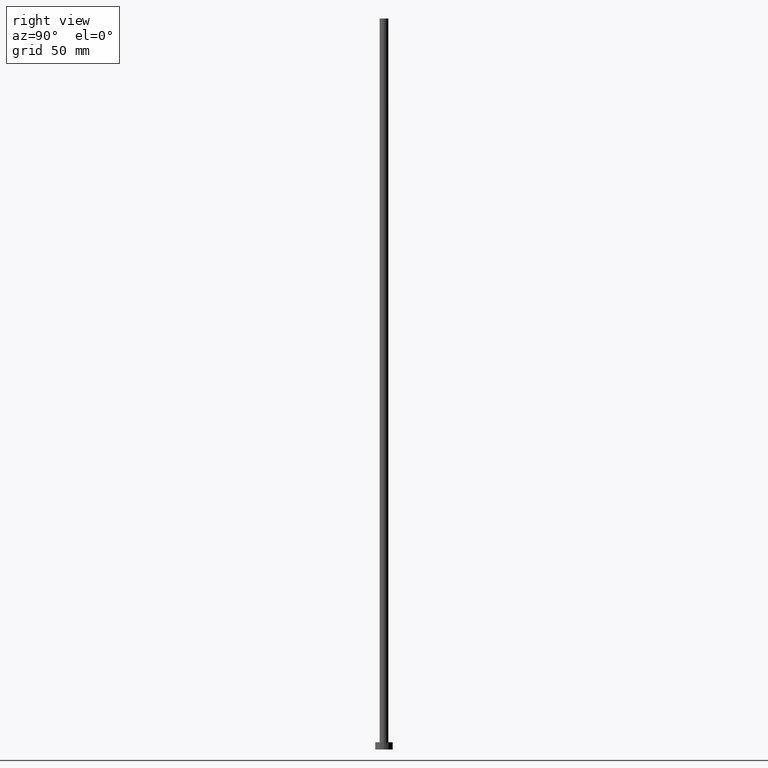
[diagram: clean part render]
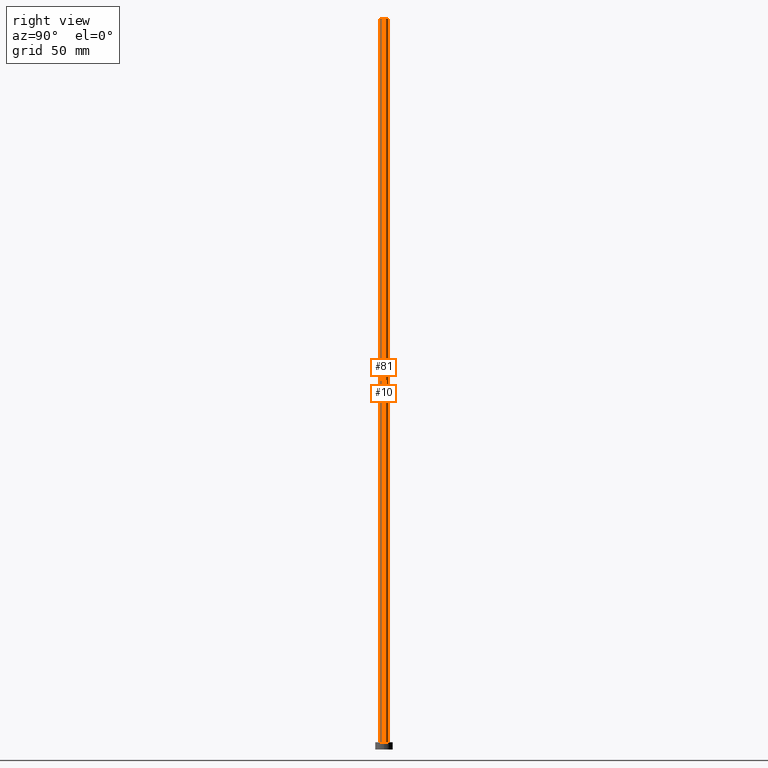
[diagram: same view with one multi-face feature highlighted, each face labeled with its STEP entity id]
A machine part, right view. The highlighted faces form ONE feature: a constant-radius fillet chain: 2 tangent blend faces with common blend radius 3 mm. The faces share edges in the B-rep.
Their STEP definitions:
[1] entity #10 (Cylinder):
#10 = ADVANCED_FACE ( 'NONE', ( #229 ), #130, .T. ) ;
#34 = ORIENTED_EDGE ( 'NONE', *, *, #49, .T. ) ;
#39 = AXIS2_PLACEMENT_3D ( 'NONE', #243, #65, #131 ) ;
#41 = CARTESIAN_POINT ( 'NONE',  ( -3.000000000000000444, 0.000000000000000000, 5.000000000000000000 ) ) ;
#44 = DIRECTION ( 'NONE',  ( -0.000000000000000000, -0.000000000000000000, -1.000000000000000000 ) ) ;
#45 = CARTESIAN_POINT ( 'NONE',  ( 3.000000000000000444, 3.673940397442060361E-16, 5.000000000000000000 ) ) ;
#49 = EDGE_CURVE ( 'NONE', #244, #144, #173, .T. ) ;
#65 = DIRECTION ( 'NONE',  ( -0.000000000000000000, -0.000000000000000000, -1.000000000000000000 ) ) ;
#68 = VECTOR ( 'NONE', #44, 1000.000000000000000 ) ;
#74 = DIRECTION ( 'NONE',  ( 0.000000000000000000, 0.000000000000000000, 1.000000000000000000 ) ) ;
#75 = CARTESIAN_POINT ( 'NONE',  ( 0.000000000000000000, 0.000000000000000000, 500.0000000000000000 ) ) ;
#84 = EDGE_LOOP ( 'NONE', ( #193, #34, #186, #245 ) ) ;
#85 = CARTESIAN_POINT ( 'NONE',  ( 3.000000000000000444, 3.673940397442060361E-16, 500.0000000000000000 ) ) ;
#96 = CIRCLE ( 'NONE', #216, 3.000000000000000444 ) ;
#107 = EDGE_CURVE ( 'NONE', #244, #238, #210, .T. ) ;
#108 = DIRECTION ( 'NONE',  ( -0.000000000000000000, -0.000000000000000000, -1.000000000000000000 ) ) ;
#115 = DIRECTION ( 'NONE',  ( 1.000000000000000000, 0.000000000000000000, 0.000000000000000000 ) ) ;
#116 = VECTOR ( 'NONE', #108, 1000.000000000000000 ) ;
#119 = EDGE_CURVE ( 'NONE', #238, #182, #241, .T. ) ;
#128 = CARTESIAN_POINT ( 'NONE',  ( -3.000000000000000444, 0.000000000000000000, 500.0000000000000000 ) ) ;
#130 = CYLINDRICAL_SURFACE ( 'NONE', #39, 3.000000000000000444 ) ;
#131 = DIRECTION ( 'NONE',  ( -1.000000000000000000, 0.000000000000000000, 0.000000000000000000 ) ) ;
#144 = VERTEX_POINT ( 'NONE', #45 ) ;
#155 = CARTESIAN_POINT ( 'NONE',  ( 0.000000000000000000, 0.000000000000000000, 5.000000000000000000 ) ) ;
#156 = DIRECTION ( 'NONE',  ( 0.000000000000000000, 0.000000000000000000, 1.000000000000000000 ) ) ;
#173 = LINE ( 'NONE', #247, #68 ) ;
#182 = VERTEX_POINT ( 'NONE', #41 ) ;
#186 = ORIENTED_EDGE ( 'NONE', *, *, #230, .T. ) ;
#193 = ORIENTED_EDGE ( 'NONE', *, *, #107, .F. ) ;
#195 = CARTESIAN_POINT ( 'NONE',  ( -3.000000000000000444, 0.000000000000000000, 500.0000000000000000 ) ) ;
#210 = CIRCLE ( 'NONE', #233, 3.000000000000000444 ) ;
#216 = AXIS2_PLACEMENT_3D ( 'NONE', #155, #74, #115 ) ;
#229 = FACE_OUTER_BOUND ( 'NONE', #84, .T. ) ;
#230 = EDGE_CURVE ( 'NONE', #144, #182, #96, .T. ) ;
#233 = AXIS2_PLACEMENT_3D ( 'NONE', #75, #156, #255 ) ;
#238 = VERTEX_POINT ( 'NONE', #128 ) ;
#241 = LINE ( 'NONE', #195, #116 ) ;
#243 = CARTESIAN_POINT ( 'NONE',  ( 0.000000000000000000, 0.000000000000000000, 500.0000000000000000 ) ) ;
#244 = VERTEX_POINT ( 'NONE', #85 ) ;
#245 = ORIENTED_EDGE ( 'NONE', *, *, #119, .F. ) ;
#247 = CARTESIAN_POINT ( 'NONE',  ( 3.000000000000000444, 3.673940397442060361E-16, 500.0000000000000000 ) ) ;
#255 = DIRECTION ( 'NONE',  ( 1.000000000000000000, 0.000000000000000000, 0.000000000000000000 ) ) ;
[2] entity #81 (Cylinder):
#6 = FACE_OUTER_BOUND ( 'NONE', #40, .T. ) ;
#16 = CARTESIAN_POINT ( 'NONE',  ( 0.000000000000000000, 0.000000000000000000, 500.0000000000000000 ) ) ;
#40 = EDGE_LOOP ( 'NONE', ( #140, #202, #93, #184 ) ) ;
#41 = CARTESIAN_POINT ( 'NONE',  ( -3.000000000000000444, 0.000000000000000000, 5.000000000000000000 ) ) ;
#44 = DIRECTION ( 'NONE',  ( -0.000000000000000000, -0.000000000000000000, -1.000000000000000000 ) ) ;
#45 = CARTESIAN_POINT ( 'NONE',  ( 3.000000000000000444, 3.673940397442060361E-16, 5.000000000000000000 ) ) ;
#49 = EDGE_CURVE ( 'NONE', #244, #144, #173, .T. ) ;
#64 = DIRECTION ( 'NONE',  ( 0.000000000000000000, 0.000000000000000000, 1.000000000000000000 ) ) ;
#66 = EDGE_CURVE ( 'NONE', #182, #144, #221, .T. ) ;
#67 = CYLINDRICAL_SURFACE ( 'NONE', #86, 3.000000000000000444 ) ;
#68 = VECTOR ( 'NONE', #44, 1000.000000000000000 ) ;
#70 = DIRECTION ( 'NONE',  ( 1.000000000000000000, 0.000000000000000000, 0.000000000000000000 ) ) ;
#81 = ADVANCED_FACE ( 'NONE', ( #6 ), #67, .T. ) ;
#82 = DIRECTION ( 'NONE',  ( 0.000000000000000000, 0.000000000000000000, 1.000000000000000000 ) ) ;
#85 = CARTESIAN_POINT ( 'NONE',  ( 3.000000000000000444, 3.673940397442060361E-16, 500.0000000000000000 ) ) ;
#86 = AXIS2_PLACEMENT_3D ( 'NONE', #246, #203, #133 ) ;
#93 = ORIENTED_EDGE ( 'NONE', *, *, #119, .T. ) ;
#108 = DIRECTION ( 'NONE',  ( -0.000000000000000000, -0.000000000000000000, -1.000000000000000000 ) ) ;
#116 = VECTOR ( 'NONE', #108, 1000.000000000000000 ) ;
#119 = EDGE_CURVE ( 'NONE', #238, #182, #241, .T. ) ;
#121 = AXIS2_PLACEMENT_3D ( 'NONE', #168, #64, #70 ) ;
#128 = CARTESIAN_POINT ( 'NONE',  ( -3.000000000000000444, 0.000000000000000000, 500.0000000000000000 ) ) ;
#133 = DIRECTION ( 'NONE',  ( -1.000000000000000000, 0.000000000000000000, 0.000000000000000000 ) ) ;
#140 = ORIENTED_EDGE ( 'NONE', *, *, #49, .F. ) ;
#144 = VERTEX_POINT ( 'NONE', #45 ) ;
#148 = CIRCLE ( 'NONE', #237, 3.000000000000000444 ) ;
#168 = CARTESIAN_POINT ( 'NONE',  ( 0.000000000000000000, 0.000000000000000000, 5.000000000000000000 ) ) ;
#173 = LINE ( 'NONE', #247, #68 ) ;
#182 = VERTEX_POINT ( 'NONE', #41 ) ;
#184 = ORIENTED_EDGE ( 'NONE', *, *, #66, .T. ) ;
#195 = CARTESIAN_POINT ( 'NONE',  ( -3.000000000000000444, 0.000000000000000000, 500.0000000000000000 ) ) ;
#202 = ORIENTED_EDGE ( 'NONE', *, *, #239, .F. ) ;
#203 = DIRECTION ( 'NONE',  ( -0.000000000000000000, -0.000000000000000000, -1.000000000000000000 ) ) ;
#219 = DIRECTION ( 'NONE',  ( 1.000000000000000000, 0.000000000000000000, 0.000000000000000000 ) ) ;
#221 = CIRCLE ( 'NONE', #121, 3.000000000000000444 ) ;
#237 = AXIS2_PLACEMENT_3D ( 'NONE', #16, #82, #219 ) ;
#238 = VERTEX_POINT ( 'NONE', #128 ) ;
#239 = EDGE_CURVE ( 'NONE', #238, #244, #148, .T. ) ;
#241 = LINE ( 'NONE', #195, #116 ) ;
#244 = VERTEX_POINT ( 'NONE', #85 ) ;
#246 = CARTESIAN_POINT ( 'NONE',  ( 0.000000000000000000, 0.000000000000000000, 500.0000000000000000 ) ) ;
#247 = CARTESIAN_POINT ( 'NONE',  ( 3.000000000000000444, 3.673940397442060361E-16, 500.0000000000000000 ) ) ;